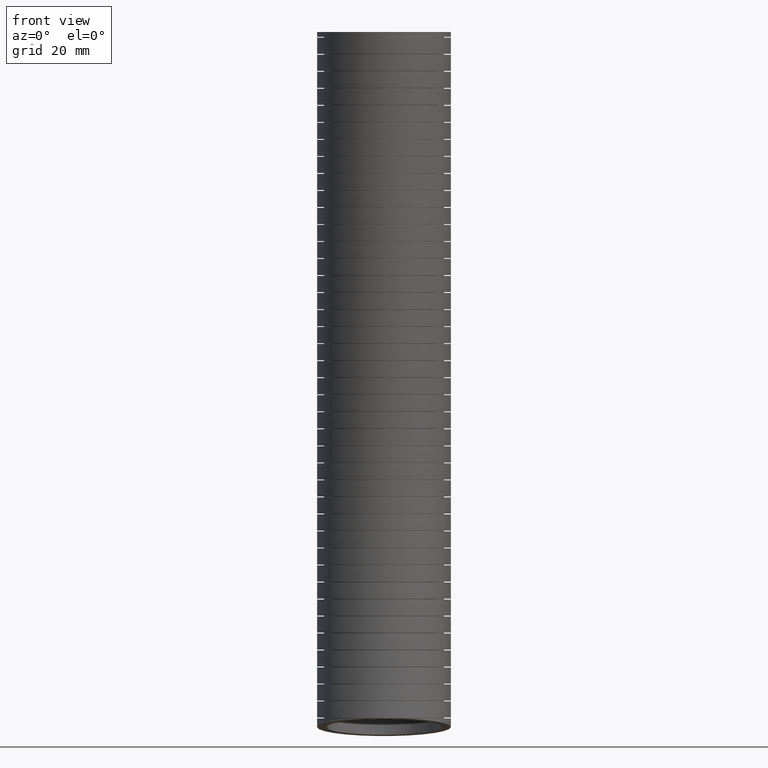
[diagram: clean part render]
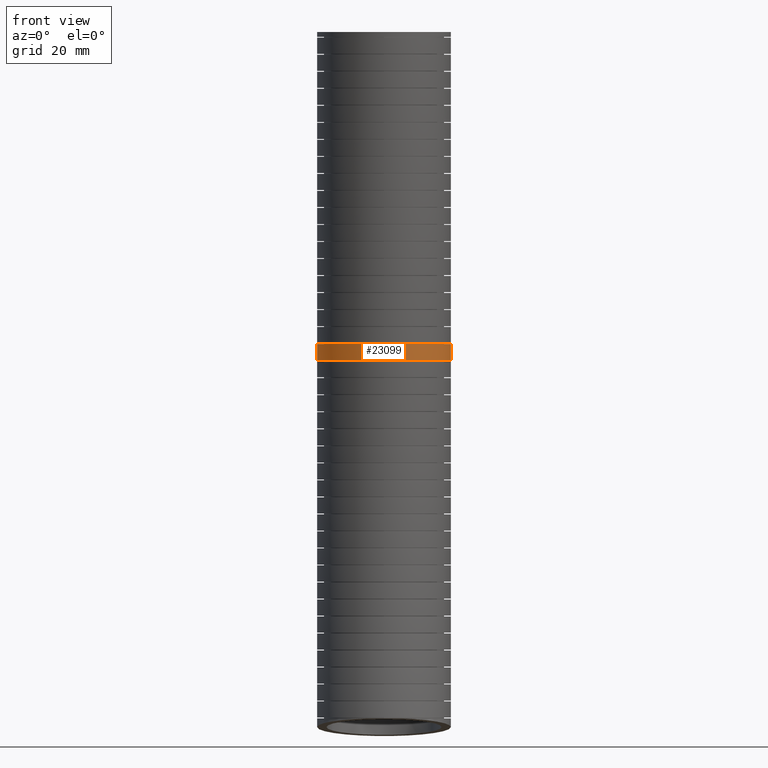
[diagram: same view with one face highlighted and labeled with its STEP entity id]
A machine part, front view. The second image highlights one B-rep face of the part: STEP entity #23099.
In plain terms, the highlighted face is a freeform B-spline surface patch.
Its self-contained STEP definition (entity closure, byte-faithful):
#7414 = CARTESIAN_POINT ( 'NONE',  ( -0.6548862343783163900, -0.3657881974143407100, -4.047582740464325600 ) ) ;
#7415 = CARTESIAN_POINT ( 'NONE',  ( -0.6709269660578745000, -0.3441642732009664300, -4.047582740464326500 ) ) ;
#7416 = CARTESIAN_POINT ( 'NONE',  ( -0.7007983880312153000, -0.2995090757417716000, -4.047582740464327400 ) ) ;
#7417 = CARTESIAN_POINT ( 'NONE',  ( -0.7146290090759371800, -0.2764777583983152300, -4.047582740464323900 ) ) ;
#7418 = CARTESIAN_POINT ( 'NONE',  ( -0.7400625163630163400, -0.2289965075538816800, -4.047582740464324800 ) ) ;
#7419 = CARTESIAN_POINT ( 'NONE',  ( -0.7516825698207586500, -0.2045056125516029300, -4.047582740464324800 ) ) ;
#7420 = CARTESIAN_POINT ( 'NONE',  ( -0.7829693785465528000, -0.1290820901678471600, -4.047582740464325600 ) ) ;
#7421 = CARTESIAN_POINT ( 'NONE',  ( -0.7985566103383295900, -0.07756709480053672300, -4.047582740464324800 ) ) ;
#7422 = CARTESIAN_POINT ( 'NONE',  ( -0.8143298026401393200, 0.001484604040446343600, -4.047582740464324800 ) ) ;
#7423 = CARTESIAN_POINT ( 'NONE',  ( -0.8183102317047038500, 0.02813389344501979500, -4.047582740464324800 ) ) ;
#7424 = CARTESIAN_POINT ( 'NONE',  ( -0.8236538467080609700, 0.08204456808226162600, -4.047582740464323900 ) ) ;
#7425 = CARTESIAN_POINT ( 'NONE',  ( -0.8250000000000000700, 0.1093488787443142000, -4.047582740464324800 ) ) ;
#7426 = CARTESIAN_POINT ( 'NONE',  ( -0.8249999999999998400, 0.1363606034425066900, -4.047582740464326500 ) ) ;
#7427 = B_SPLINE_CURVE_WITH_KNOTS ( 'NONE', 3,
 ( #7426, #7425, #7424, #7423, #7422, #7421, #7420, #7419, #7418, #7417, #7416, #7415, #7414, #7482, #7481, #7480, #7479, #7478, #7477, #7476, #7475, #7474, #7473, #7472, #7471, #7470, #7469, #7468, #7467, #7466, #7465, #7464, #7463, #7462, #7461, #7460, #7459, #7458, #7457, #7456, #7455, #7454, #7453, #7452, #7451, #7450, #7449, #7448, #7447, #7446, #7445, #7444, #7443, #7442, #7441, #7440, #7439, #7438, #7437 ),
 .UNSPECIFIED., .F., .F.,
 ( 4, 2, 2, 2, 2, 2, 2, 2, 2, 2, 2, 2, 2, 1, 2, 2, 2, 2, 2, 2, 2, 2, 2, 2, 2, 2, 2, 2, 2, 4 ),
 ( 0.06619521554013289800, 0.06826389834508654600, 0.07033258115004019400, 0.07446994675994748900, 0.07653862956490115100, 0.07860731236985479800, 0.08067599517480844600, 0.08274467797976209300, 0.08688204358966940300, 0.08895072639462305000, 0.09101940919957669800, 0.09515677480948400700, 0.09722545761443765500, 0.09929414041939130200, 0.1013628232243449500, 0.1023971646268217700, 0.1034315060292986000, 0.1075688716392059100, 0.1096375544441595500, 0.1106718958466363800, 0.1117062372491132000, 0.1158436028590205100, 0.1168779442614973400, 0.1179122856639741600, 0.1199809684689278100, 0.1241183340788351300, 0.1261870168837887800, 0.1282556996887424500, 0.1303243824936961000, 0.1323930652986497500 ),
 .UNSPECIFIED. ) ;
#7437 = CARTESIAN_POINT ( 'NONE',  ( 0.8249999999999999600, 0.1363606034377832000, -4.047582740272520900 ) ) ;
#7438 = CARTESIAN_POINT ( 'NONE',  ( 0.8249999999999996200, 0.1091184187273945700, -4.047582740272519100 ) ) ;
#7439 = CARTESIAN_POINT ( 'NONE',  ( 0.8236397165308910800, 0.08185913152654109000, -4.047582740464323000 ) ) ;
#7440 = CARTESIAN_POINT ( 'NONE',  ( 0.8182988473513150800, 0.02806212445003966300, -4.047582740464323000 ) ) ;
#7441 = CARTESIAN_POINT ( 'NONE',  ( 0.8143230137388416400, 0.001445937615141070700, -4.047582740464324800 ) ) ;
#7442 = CARTESIAN_POINT ( 'NONE',  ( 0.8038102182293707100, -0.05123254465318562900, -4.047582740464323900 ) ) ;
#7443 = CARTESIAN_POINT ( 'NONE',  ( 0.7972731969635079600, -0.07729482724699827900, -4.047582740464323900 ) ) ;
#7444 = CARTESIAN_POINT ( 'NONE',  ( 0.7816132084566900200, -0.1288601337481613000, -4.047582740464323900 ) ) ;
#7445 = CARTESIAN_POINT ( 'NONE',  ( 0.7724555858602362200, -0.1544457822364087900, -4.047582740464326500 ) ) ;
#7446 = CARTESIAN_POINT ( 'NONE',  ( 0.7411826707548706500, -0.2297817427948602400, -4.047582740464328300 ) ) ;
#7447 = CARTESIAN_POINT ( 'NONE',  ( 0.7157353135384384400, -0.2771827089651752700, -4.047582740464331000 ) ) ;
#7448 = CARTESIAN_POINT ( 'NONE',  ( 0.6709046782601597600, -0.3441960666508873700, -4.047582740464329200 ) ) ;
#7449 = CARTESIAN_POINT ( 'NONE',  ( 0.6548430704725227700, -0.3658475135689507900, -4.047582740464325600 ) ) ;
#7450 = CARTESIAN_POINT ( 'NONE',  ( 0.6290296476795019800, -0.3972682163513136000, -4.047582740464325600 ) ) ;
#7451 = CARTESIAN_POINT ( 'NONE',  ( 0.6201116516059020900, -0.4075931029841939300, -4.047582740464328300 ) ) ;
#7452 = CARTESIAN_POINT ( 'NONE',  ( 0.6018519978479931500, -0.4277040354790534500, -4.047582740464328300 ) ) ;
#7453 = CARTESIAN_POINT ( 'NONE',  ( 0.5925081964891499900, -0.4374963340074048400, -4.047582740464327400 ) ) ;
#7454 = CARTESIAN_POINT ( 'NONE',  ( 0.5447393104908560000, -0.4851665777320310900, -4.047582740464326500 ) ) ;
#7455 = CARTESIAN_POINT ( 'NONE',  ( 0.5031944626522080200, -0.5192075187882238000, -4.047582740464323900 ) ) ;
#7456 = CARTESIAN_POINT ( 'NONE',  ( 0.4471123232706821200, -0.5566532725075810100, -4.047582740464323900 ) ) ;
#7457 = CARTESIAN_POINT ( 'NONE',  ( 0.4356864774756456500, -0.5638848596577206200, -4.047582740464324800 ) ) ;
#7458 = CARTESIAN_POINT ( 'NONE',  ( 0.4124085639216485400, -0.5778238225561233000, -4.047582740464325600 ) ) ;
#7459 = CARTESIAN_POINT ( 'NONE',  ( 0.4005286734462806800, -0.5845445677486853500, -4.047582740464322100 ) ) ;
#7460 = CARTESIAN_POINT ( 'NONE',  ( 0.3646117457375914200, -0.6037077010453014700, -4.047582740464322100 ) ) ;
#7461 = CARTESIAN_POINT ( 'NONE',  ( 0.3402104673645478000, -0.6152130389081528200, -4.047582740464327400 ) ) ;
#7462 = CARTESIAN_POINT ( 'NONE',  ( 0.2656751413585850000, -0.6460258464230999000, -4.047582740464326500 ) ) ;
#7463 = CARTESIAN_POINT ( 'NONE',  ( 0.2142223572286622000, -0.6616655831199861300, -4.047582740464323900 ) ) ;
#7464 = CARTESIAN_POINT ( 'NONE',  ( 0.1476363451759774600, -0.6749017328348382300, -4.047582740464323900 ) ) ;
#7465 = CARTESIAN_POINT ( 'NONE',  ( 0.1341905364484815300, -0.6772304373709783200, -4.047582740464327400 ) ) ;
#7466 = CARTESIAN_POINT ( 'NONE',  ( 0.1073654386801552200, -0.6811976467193937600, -4.047582740464328300 ) ) ;
#7467 = CARTESIAN_POINT ( 'NONE',  ( 0.09395026133012313000, -0.6828441976586529000, -4.047582740464328300 ) ) ;
#7468 = CARTESIAN_POINT ( 'NONE',  ( 0.05369697658156797500, -0.6867897055641233300, -4.047582740464328300 ) ) ;
#7469 = CARTESIAN_POINT ( 'NONE',  ( 5.292885597073044700E-006, -0.6894040098863101200, -4.047582740464328300 ) ) ;
#7470 = CARTESIAN_POINT ( 'NONE',  ( -0.05372717012314720500, -0.6867890967248494500, -4.047582740464326500 ) ) ;
#7471 = CARTESIAN_POINT ( 'NONE',  ( -0.1074803652517287600, -0.6815156600093381600, -4.047582740464327400 ) ) ;
#7472 = CARTESIAN_POINT ( 'NONE',  ( -0.1345157692411519700, -0.6775145158324160600, -4.047582740464323900 ) ) ;
#7473 = CARTESIAN_POINT ( 'NONE',  ( -0.2142380345169200800, -0.6616531529541434000, -4.047582740464323900 ) ) ;
#7474 = CARTESIAN_POINT ( 'NONE',  ( -0.2656613874900939400, -0.6460337900766556200, -4.047582740464328300 ) ) ;
#7475 = CARTESIAN_POINT ( 'NONE',  ( -0.3402617141204738500, -0.6151907236469418300, -4.047582740464328300 ) ) ;
#7476 = CARTESIAN_POINT ( 'NONE',  ( -0.3647030369283653700, -0.6036652495098870900, -4.047582740464324800 ) ) ;
#7477 = CARTESIAN_POINT ( 'NONE',  ( -0.4127059863405068700, -0.5780411841700147100, -4.047582740464324800 ) ) ;
#7478 = CARTESIAN_POINT ( 'NONE',  ( -0.4359791413117531900, -0.5640892796831635800, -4.047582740464327400 ) ) ;
#7479 = CARTESIAN_POINT ( 'NONE',  ( -0.5031831675309372800, -0.5192101734244951600, -4.047582740464328300 ) ) ;
#7480 = CARTESIAN_POINT ( 'NONE',  ( -0.5447445214113056900, -0.4851705751059249300, -4.047582740464326500 ) ) ;
#7481 = CARTESIAN_POINT ( 'NONE',  ( -0.6021648585721355300, -0.4278550013845961500, -4.047582740464324800 ) ) ;
#7482 = CARTESIAN_POINT ( 'NONE',  ( -0.6205480433732933900, -0.4075989671106169400, -4.047582740464324800 ) ) ;
#7483 = CARTESIAN_POINT ( 'NONE',  ( -0.5446182572120814600, -0.4881442084509035100, -3.847603049585762000 ) ) ;
#7484 = CARTESIAN_POINT ( 'NONE',  ( -0.5029456617211675000, -0.5222174414591683700, -3.847603049585761200 ) ) ;
#7485 = CARTESIAN_POINT ( 'NONE',  ( -0.4358904669537315700, -0.5669819097255294200, -3.847603049585762500 ) ) ;
#7486 = CARTESIAN_POINT ( 'NONE',  ( -0.4127754243912157800, -0.5808380278557944100, -3.847603049585760700 ) ) ;
#7487 = CARTESIAN_POINT ( 'NONE',  ( -0.3649815376342754300, -0.6063676289611670300, -3.847603049585761200 ) ) ;
#7488 = CARTESIAN_POINT ( 'NONE',  ( -0.3402568684867576800, -0.6180416415905909400, -3.847603049585758100 ) ) ;
#7489 = CARTESIAN_POINT ( 'NONE',  ( -0.2653526512522619300, -0.6490011289536925500, -3.847603049585758500 ) ) ;
#7490 = CARTESIAN_POINT ( 'NONE',  ( -0.2139340177301468900, -0.6645662452117122600, -3.847603049585763400 ) ) ;
#7491 = CARTESIAN_POINT ( 'NONE',  ( -0.1478187513831554800, -0.6777175829260829700, -3.847603049585763400 ) ) ;
#7492 = CARTESIAN_POINT ( 'NONE',  ( -0.1345027713693684700, -0.6800297632780603100, -3.847603049585762900 ) ) ;
#7493 = CARTESIAN_POINT ( 'NONE',  ( -0.1076818439425953300, -0.6840072907201980600, -3.847603049585762900 ) ) ;
#7494 = CARTESIAN_POINT ( 'NONE',  ( -0.09413890931764588900, -0.6856756479696857200, -3.847603049585764300 ) ) ;
#7495 = CARTESIAN_POINT ( 'NONE',  ( -0.05357978776956259100, -0.6896558397478106400, -3.847603049585764700 ) ) ;
#7496 = CARTESIAN_POINT ( 'NONE',  ( -0.02661220936175305900, -0.6909578537797567100, -3.847603049585766000 ) ) ;
#7497 = CARTESIAN_POINT ( 'NONE',  ( 0.05408141647646393100, -0.6909299289190741200, -3.847603049585765200 ) ) ;
#7498 = CARTESIAN_POINT ( 'NONE',  ( 0.1076003452031766000, -0.6857034736860310200, -3.847603049585762500 ) ) ;
#7499 = CARTESIAN_POINT ( 'NONE',  ( 0.1741436269304815500, -0.6724846695495818600, -3.847603049585762000 ) ) ;
#7500 = CARTESIAN_POINT ( 'NONE',  ( 0.1874639485104902000, -0.6694948254894876900, -3.847603049585762500 ) ) ;
#7501 = CARTESIAN_POINT ( 'NONE',  ( 0.2137948123203010600, -0.6628971502559125600, -3.847603049585761200 ) ) ;
#7502 = CARTESIAN_POINT ( 'NONE',  ( 0.2268316024935819200, -0.6592856512076397100, -3.847603049585760300 ) ) ;
#7503 = CARTESIAN_POINT ( 'NONE',  ( 0.2655628495784994000, -0.6475297013244517600, -3.847603049585760700 ) ) ;
#7504 = CARTESIAN_POINT ( 'NONE',  ( 0.3161953006786196700, -0.6294022305145758900, -3.847603049585758100 ) ) ;
#7505 = CARTESIAN_POINT ( 'NONE',  ( 0.3648366603282962000, -0.6064354474904268800, -3.847603049585764300 ) ) ;
#7506 = CARTESIAN_POINT ( 'NONE',  ( 0.4005596316555803400, -0.5873679370987685600, -3.847603049585764300 ) ) ;
#7507 = CARTESIAN_POINT ( 'NONE',  ( 0.4123407232468610500, -0.5807044850706538600, -3.847603049585762900 ) ) ;
#7508 = CARTESIAN_POINT ( 'NONE',  ( 0.4356450316506257900, -0.5667508209695719700, -3.847603049585762500 ) ) ;
#7509 = CARTESIAN_POINT ( 'NONE',  ( 0.4471775378676662900, -0.5594518997841192400, -3.847603049585762900 ) ) ;
#7510 = CARTESIAN_POINT ( 'NONE',  ( 0.5035570090509439200, -0.5217891945714283600, -3.847603049585761200 ) ) ;
#7511 = CARTESIAN_POINT ( 'NONE',  ( 0.5451034784394666000, -0.4876642841290984600, -3.847603049585759800 ) ) ;
#7512 = CARTESIAN_POINT ( 'NONE',  ( 0.6022121857483877500, -0.4306248013741969000, -3.847603049585760700 ) ) ;
#7513 = CARTESIAN_POINT ( 'NONE',  ( 0.6203737101170859700, -0.4106293114003154400, -3.847603049585762000 ) ) ;
#7514 = CARTESIAN_POINT ( 'NONE',  ( 0.6548909843710808400, -0.3686103885893877700, -3.847603049585762500 ) ) ;
#7515 = CARTESIAN_POINT ( 'NONE',  ( 0.6710858848374635600, -0.3467665896730795500, -3.847603049585762500 ) ) ;
#7516 = CARTESIAN_POINT ( 'NONE',  ( 0.7160128680919504200, -0.2795351792294881700, -3.847603049585762500 ) ) ;
#7517 = CARTESIAN_POINT ( 'NONE',  ( 0.7413682754625740000, -0.2321672641488560800, -3.847603049585763400 ) ) ;
#7518 = CARTESIAN_POINT ( 'NONE',  ( 0.7724449874275979300, -0.1572602780514767400, -3.847603049585762500 ) ) ;
#7519 = CARTESIAN_POINT ( 'NONE',  ( 0.7816689456529953800, -0.1315077769571732500, -3.847603049585759800 ) ) ;
#7520 = CARTESIAN_POINT ( 'NONE',  ( 0.7973845099216738700, -0.07968963751948736400, -3.847603049585760300 ) ) ;
#7521 = CARTESIAN_POINT ( 'NONE',  ( 0.8039199565464667500, -0.05355534767817590100, -3.847603049585762500 ) ) ;
#7522 = CARTESIAN_POINT ( 'NONE',  ( 0.8196478334308831000, 0.02550810148177611400, -3.847603049585764300 ) ) ;
#7523 = CARTESIAN_POINT ( 'NONE',  ( 0.8250000000000000700, 0.07909133433352794100, -3.847603049393985700 ) ) ;
#7524 = CARTESIAN_POINT ( 'NONE',  ( 0.8249999999999999600, 0.1335861479463395500, -3.847603049393985700 ) ) ;
#7525 = B_SPLINE_CURVE_WITH_KNOTS ( 'NONE', 3,
 ( #7524, #7523, #7522, #7521, #7520, #7519, #7518, #7517, #7516, #7515, #7514, #7513, #7512, #7511, #7510, #7509, #7508, #7507, #7506, #7505, #7504, #7503, #7502, #7501, #7500, #7499, #7498, #7497, #7496, #7495, #7494, #7493, #7492, #7491, #7490, #7489, #7488, #7487, #7486, #7485, #7484, #7483, #7589, #7588, #7587, #7586, #7585, #7584, #7583, #7582, #7581, #7580, #7579, #7578, #7577, #7576, #7574 ),
 .UNSPECIFIED., .F., .F.,
 ( 4, 2, 2, 2, 2, 2, 2, 2, 2, 2, 1, 2, 2, 2, 2, 2, 2, 2, 2, 2, 2, 2, 2, 2, 2, 2, 2, 2, 4 ),
 ( 0.0000000000000000000, 0.004093554531878993200, 0.006140331797818488100, 0.008187109063757983000, 0.01228066359563697600, 0.01432744086157647200, 0.01637421812751596900, 0.02046777265939496400, 0.02149116129236471700, 0.02251454992533446400, 0.02456132719127395200, 0.02660810445721344100, 0.02763149309018318700, 0.02865488172315293700, 0.03274843625503192500, 0.03479521352097141000, 0.03581860215394116300, 0.03684199078691091000, 0.04093554531878990100, 0.04298232258472940000, 0.04502909985066889900, 0.04912265438254789800, 0.05116943164848739000, 0.05321620891442688900, 0.05526298618036638900, 0.05730976344630588100, 0.06140331797818487900, 0.06345009524412437200, 0.06549687251006386400 ),
 .UNSPECIFIED. ) ;
#7526 = CARTESIAN_POINT ( 'NONE',  ( 0.8249999999999999600, 0.1335861479463395500, -3.847603049393985700 ) ) ;
#7574 = CARTESIAN_POINT ( 'NONE',  ( -0.8249999999999999600, 0.1335861479522494300, -3.847603049585760700 ) ) ;
#7576 = CARTESIAN_POINT ( 'NONE',  ( -0.8249999999999999600, 0.1066713867207776300, -3.847603049585764700 ) ) ;
#7577 = CARTESIAN_POINT ( 'NONE',  ( -0.8236848551811198900, 0.07967305815982223000, -3.847603049585763400 ) ) ;
#7578 = CARTESIAN_POINT ( 'NONE',  ( -0.8183348200484379400, 0.02550358214783774900, -3.847603049585764300 ) ) ;
#7579 = CARTESIAN_POINT ( 'NONE',  ( -0.8143275678839950700, -0.001329171425598224300, -3.847603049585760700 ) ) ;
#7580 = CARTESIAN_POINT ( 'NONE',  ( -0.7985055413459879500, -0.08058551367999604300, -3.847603049585762900 ) ) ;
#7581 = CARTESIAN_POINT ( 'NONE',  ( -0.7829045347098047000, -0.1320027918693701400, -3.847603049585759800 ) ) ;
#7582 = CARTESIAN_POINT ( 'NONE',  ( -0.7518304534178614800, -0.2069721192294546000, -3.847603049585760700 ) ) ;
#7583 = CARTESIAN_POINT ( 'NONE',  ( -0.7401192158678219200, -0.2316988328834916600, -3.847603049585765200 ) ) ;
#7584 = CARTESIAN_POINT ( 'NONE',  ( -0.7145722765708205600, -0.2793963138690752600, -3.847603049585764300 ) ) ;
#7585 = CARTESIAN_POINT ( 'NONE',  ( -0.7007032228726430800, -0.3024767947675748900, -3.847603049585758500 ) ) ;
#7586 = CARTESIAN_POINT ( 'NONE',  ( -0.6708195251236275200, -0.3471331979920666600, -3.847603049585758100 ) ) ;
#7587 = CARTESIAN_POINT ( 'NONE',  ( -0.6548048126762778800, -0.3687090723561717900, -3.847603049585760700 ) ) ;
#7588 = CARTESIAN_POINT ( 'NONE',  ( -0.6206128545173816800, -0.4103443815846642400, -3.847603049585761200 ) ) ;
#7589 = CARTESIAN_POINT ( 'NONE',  ( -0.6024012542550871700, -0.4304383131480541400, -3.847603049585761200 ) ) ;
#7627 = CARTESIAN_POINT ( 'NONE',  ( -0.8249999999999998400, 0.1363606034425066900, -4.047582740464326500 ) ) ;
#7628 = CARTESIAN_POINT ( 'NONE',  ( -0.8249999999999998400, 0.1355398784449958200, -3.980927269901386500 ) ) ;
#7630 = CARTESIAN_POINT ( 'NONE',  ( -0.8249999999999998400, 0.1346133154242701900, -3.914267298758989700 ) ) ;
#7632 = CARTESIAN_POINT ( 'NONE',  ( -0.8249999999999999600, 0.1335861479522494300, -3.847603049585760700 ) ) ;
#7636 = CARTESIAN_POINT ( 'NONE',  ( -0.8249999999999998400, 0.1363606034425066900, -4.047582740464326500 ) ) ;
#7640 = CARTESIAN_POINT ( 'NONE',  ( -0.8249999999999999600, 0.1335861479522494300, -3.847603049585760700 ) ) ;
#7644 = B_SPLINE_CURVE_WITH_KNOTS ( 'NONE', 3,
 ( #7632, #7630, #7628, #7627 ),
 .UNSPECIFIED., .F., .F.,
 ( 4, 4 ),
 ( 0.4482322893593363400, 0.4715499049603217300 ),
 .UNSPECIFIED. ) ;
#7646 = CARTESIAN_POINT ( 'NONE',  ( 0.8249999999999999600, 0.1363606034377832000, -4.047582740272520900 ) ) ;
#7701 = FACE_OUTER_BOUND ( 'NONE', #23094, .T. ) ;
#7728 = CARTESIAN_POINT ( 'NONE',  ( 0.8249999999999999600, -1.649999999999999900, 0.0000000000000000000 ) ) ;
#7730 = CARTESIAN_POINT ( 'NONE',  ( 0.8249999999999999600, -0.03000000000000003000, -8.570000000000000300 ) ) ;
#7732 = CARTESIAN_POINT ( 'NONE',  ( 0.8250000000000000700, -0.01276117587204244800, -8.380024330009550900 ) ) ;
#7734 = CARTESIAN_POINT ( 'NONE',  ( 0.8250000000000000700, 0.1008743094684736900, -7.127736047350903300 ) ) ;
#7736 = CARTESIAN_POINT ( 'NONE',  ( 0.8249999999999999600, 0.1896261967179030400, -4.274418168908688600 ) ) ;
#7738 = CARTESIAN_POINT ( 'NONE',  ( 0.8249999999999999600, 0.07111375611842187000, -1.602995453545504200 ) ) ;
#7739 = CARTESIAN_POINT ( 'NONE',  ( 0.8249999999999999600, 0.0000000000000000000, 0.0000000000000000000 ) ) ;
#7763 =( BOUNDED_SURFACE ( )  B_SPLINE_SURFACE ( 3, 3, ( 
 ( #7739, #7738, #7736, #7734, #7732, #7730 ),
 ( #7728, #7859, #7857, #7856, #7854, #7853 ),
 ( #7851, #7849, #7848, #7846, #7844, #7842 ),
 ( #7839, #7837, #7835, #7834, #7833, #7831 ),
 ( #7829, #7827, #7825, #7823, #7821, #7819 ),
 ( #7816, #7815, #7813, #7812, #7810, #7808 ),
 ( #7806, #7804, #7802, #7800, #7798, #7796 ) ),
 .UNSPECIFIED., .F., .F., .F. ) 
 B_SPLINE_SURFACE_WITH_KNOTS ( ( 4, 3, 4 ),
 ( 4, 1, 1, 4 ),
 ( 0.0000000000000000000, 0.5000000000000000000, 1.000000000000000000 ),
 ( 0.0000000000000000000, 0.5600000000000000500, 0.9332507570714188000, 1.000000000000000000 ),
 .UNSPECIFIED. ) 
 GEOMETRIC_REPRESENTATION_ITEM ( )  RATIONAL_B_SPLINE_SURFACE ( (
 ( 1.000000000000000000, 1.000000000000000000, 1.000000000000000000, 1.000000000000000000, 1.000000000000000000, 1.000000000000000000),
 ( 0.3333333333333333100, 0.3333333333333333100, 0.3333333333333333100, 0.3333333333333333100, 0.3333333333333333100, 0.3333333333333333100),
 ( 0.3333333333333333100, 0.3333333333333333100, 0.3333333333333333100, 0.3333333333333333100, 0.3333333333333333100, 0.3333333333333333100),
 ( 1.000000000000000000, 1.000000000000000000, 1.000000000000000000, 1.000000000000000000, 1.000000000000000000, 1.000000000000000000),
 ( 0.3333333333333333100, 0.3333333333333333100, 0.3333333333333333100, 0.3333333333333333100, 0.3333333333333333100, 0.3333333333333333100),
 ( 0.3333333333333333100, 0.3333333333333333100, 0.3333333333333333100, 0.3333333333333333100, 0.3333333333333333100, 0.3333333333333333100),
 ( 1.000000000000000000, 1.000000000000000000, 1.000000000000000000, 1.000000000000000000, 1.000000000000000000, 1.000000000000000000) ) ) 
 REPRESENTATION_ITEM ( '' )  SURFACE ( )  );
#7796 = CARTESIAN_POINT ( 'NONE',  ( 0.8249999999999999600, -0.03000000000000003000, -8.570000000000000300 ) ) ;
#7798 = CARTESIAN_POINT ( 'NONE',  ( 0.8250000000000000700, -0.01276117587204244800, -8.380024330009550900 ) ) ;
#7800 = CARTESIAN_POINT ( 'NONE',  ( 0.8250000000000000700, 0.1008743094684736900, -7.127736047350903300 ) ) ;
#7802 = CARTESIAN_POINT ( 'NONE',  ( 0.8249999999999999600, 0.1896261967179030400, -4.274418168908688600 ) ) ;
#7804 = CARTESIAN_POINT ( 'NONE',  ( 0.8249999999999999600, 0.07111375611842187000, -1.602995453545504200 ) ) ;
#7806 = CARTESIAN_POINT ( 'NONE',  ( 0.8249999999999999600, 0.0000000000000000000, 0.0000000000000000000 ) ) ;
#7808 = CARTESIAN_POINT ( 'NONE',  ( 0.8249999999999999600, 1.605025278502830500, -8.791793459454378700 ) ) ;
#7810 = CARTESIAN_POINT ( 'NONE',  ( 0.8250000000000000700, 1.623069247624891800, -8.593385647221989400 ) ) ;
#7812 = CARTESIAN_POINT ( 'NONE',  ( 0.8250000000000000700, 1.742012115968760700, -7.285514073672365100 ) ) ;
#7813 = CARTESIAN_POINT ( 'NONE',  ( 0.8250000000000000700, 1.841918619586391700, -4.312596098999357300 ) ) ;
#7815 = CARTESIAN_POINT ( 'NONE',  ( 0.8250000000000000700, 1.721973462232933500, -1.617312969039488500 ) ) ;
#7816 = CARTESIAN_POINT ( 'NONE',  ( 0.8249999999999999600, 1.649999999999999900, 0.0000000000000000000 ) ) ;
#7819 = CARTESIAN_POINT ( 'NONE',  ( -0.8249999999999997300, 1.605025278502830500, -8.791793459454378700 ) ) ;
#7821 = CARTESIAN_POINT ( 'NONE',  ( -0.8249999999999997300, 1.623069247624891800, -8.593385647221989400 ) ) ;
#7823 = CARTESIAN_POINT ( 'NONE',  ( -0.8249999999999997300, 1.742012115968760700, -7.285514073672365100 ) ) ;
#7825 = CARTESIAN_POINT ( 'NONE',  ( -0.8249999999999999600, 1.841918619586391700, -4.312596098999357300 ) ) ;
#7827 = CARTESIAN_POINT ( 'NONE',  ( -0.8249999999999999600, 1.721973462232933500, -1.617312969039488500 ) ) ;
#7829 = CARTESIAN_POINT ( 'NONE',  ( -0.8249999999999997300, 1.649999999999999900, 0.0000000000000000000 ) ) ;
#7831 = CARTESIAN_POINT ( 'NONE',  ( -0.8249999999999999600, -0.02999999999999993300, -8.570000000000000300 ) ) ;
#7833 = CARTESIAN_POINT ( 'NONE',  ( -0.8250000000000000700, -0.01276117587204234900, -8.380024330009550900 ) ) ;
#7834 = CARTESIAN_POINT ( 'NONE',  ( -0.8250000000000000700, 0.1008743094684737700, -7.127736047350903300 ) ) ;
#7835 = CARTESIAN_POINT ( 'NONE',  ( -0.8249999999999999600, 0.1896261967179031200, -4.274418168908688600 ) ) ;
#7837 = CARTESIAN_POINT ( 'NONE',  ( -0.8249999999999999600, 0.07111375611842195300, -1.602995453545504200 ) ) ;
#7839 = CARTESIAN_POINT ( 'NONE',  ( -0.8249999999999999600, 1.010333609296566300E-016, 0.0000000000000000000 ) ) ;
#7842 = CARTESIAN_POINT ( 'NONE',  ( -0.8250000000000000700, -1.665025278502830100, -8.348206540545621800 ) ) ;
#7844 = CARTESIAN_POINT ( 'NONE',  ( -0.8250000000000000700, -1.648591599368976800, -8.166663012797107200 ) ) ;
#7846 = CARTESIAN_POINT ( 'NONE',  ( -0.8250000000000000700, -1.540263497031813400, -6.969958021029444100 ) ) ;
#7848 = CARTESIAN_POINT ( 'NONE',  ( -0.8250000000000002900, -1.462666226150585200, -4.236240238818020000 ) ) ;
#7849 = CARTESIAN_POINT ( 'NONE',  ( -0.8250000000000002900, -1.579745949996089300, -1.588677938051519200 ) ) ;
#7851 = CARTESIAN_POINT ( 'NONE',  ( -0.8250000000000000700, -1.649999999999999900, 0.0000000000000000000 ) ) ;
#7853 = CARTESIAN_POINT ( 'NONE',  ( 0.8249999999999999600, -1.665025278502830100, -8.348206540545621800 ) ) ;
#7854 = CARTESIAN_POINT ( 'NONE',  ( 0.8250000000000000700, -1.648591599368976800, -8.166663012797107200 ) ) ;
#7856 = CARTESIAN_POINT ( 'NONE',  ( 0.8250000000000000700, -1.540263497031813400, -6.969958021029444100 ) ) ;
#7857 = CARTESIAN_POINT ( 'NONE',  ( 0.8250000000000000700, -1.462666226150585200, -4.236240238818020000 ) ) ;
#7859 = CARTESIAN_POINT ( 'NONE',  ( 0.8250000000000000700, -1.579745949996089300, -1.588677938051519200 ) ) ;
#13808 = EDGE_CURVE ( 'NONE', #23075, #23081, #21717, .T. ) ;
#21717 = B_SPLINE_CURVE_WITH_KNOTS ( 'NONE', 3,
 ( #21781, #21780, #21779, #21778 ),
 .UNSPECIFIED., .F., .F.,
 ( 4, 4 ),
 ( 0.4482322893369716200, 0.4715499049379521200 ),
 .UNSPECIFIED. ) ;
#21778 = CARTESIAN_POINT ( 'NONE',  ( 0.8249999999999999600, 0.1363606034377832000, -4.047582740272520900 ) ) ;
#21779 = CARTESIAN_POINT ( 'NONE',  ( 0.8249999999999998400, 0.1355398784424307100, -3.980927269709555000 ) ) ;
#21780 = CARTESIAN_POINT ( 'NONE',  ( 0.8249999999999999600, 0.1346133154215072600, -3.914267298567164000 ) ) ;
#21781 = CARTESIAN_POINT ( 'NONE',  ( 0.8249999999999999600, 0.1335861479463395500, -3.847603049393985700 ) ) ;
#23071 = ORIENTED_EDGE ( 'NONE', *, *, #13808, .F. ) ;
#23072 = EDGE_CURVE ( 'NONE', #23084, #23081, #7427, .T. ) ;
#23073 = EDGE_CURVE ( 'NONE', #23075, #23079, #7525, .T. ) ;
#23075 = VERTEX_POINT ( 'NONE', #7526 ) ;
#23077 = EDGE_CURVE ( 'NONE', #23079, #23084, #7644, .T. ) ;
#23079 = VERTEX_POINT ( 'NONE', #7640 ) ;
#23080 = ORIENTED_EDGE ( 'NONE', *, *, #23072, .T. ) ;
#23081 = VERTEX_POINT ( 'NONE', #7646 ) ;
#23082 = ORIENTED_EDGE ( 'NONE', *, *, #23077, .T. ) ;
#23084 = VERTEX_POINT ( 'NONE', #7636 ) ;
#23094 = EDGE_LOOP ( 'NONE', ( #23096, #23082, #23080, #23071 ) ) ;
#23096 = ORIENTED_EDGE ( 'NONE', *, *, #23073, .T. ) ;
#23099 = ADVANCED_FACE ( 'NONE', ( #7701 ), #7763, .T. ) ;